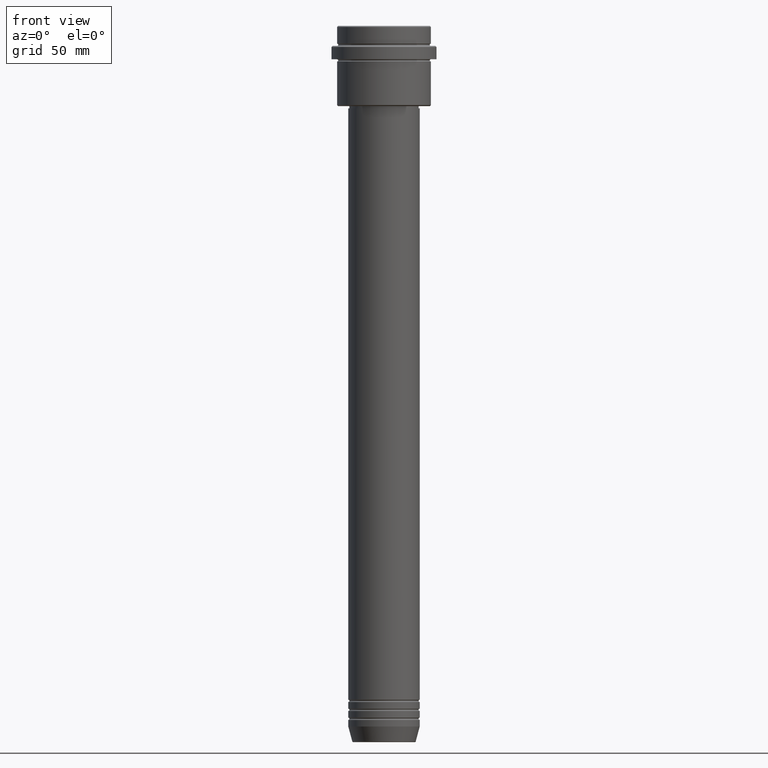
[diagram: clean part render]
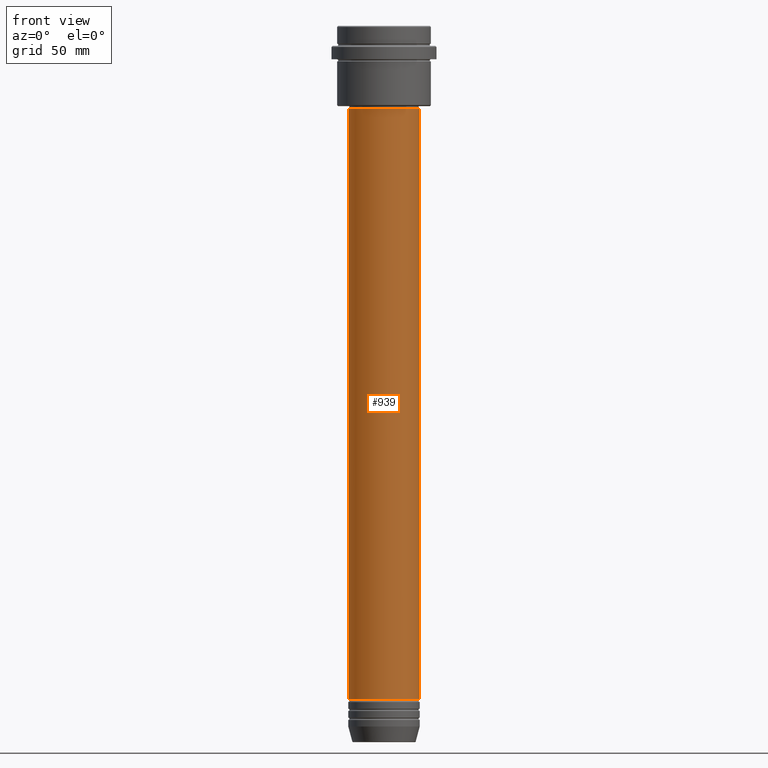
[diagram: same view with one face highlighted and labeled with its STEP entity id]
A machine part, front view. The second image highlights one B-rep face of the part: STEP entity #939.
In plain terms, the highlighted cylindrical surface (edge-blend (fillet) strip) has radius 16 mm, axis along (-0, -0, 1).
Its self-contained STEP definition (entity closure, byte-faithful):
#21 = ORIENTED_EDGE ( 'NONE', *, *, #1329, .F. ) ;
#23 = VERTEX_POINT ( 'NONE', #117 ) ;
#62 = VECTOR ( 'NONE', #1145, 1000.000000000000000 ) ;
#117 = CARTESIAN_POINT ( 'NONE',  ( 16.00000000000000355, 0.000000000000000000, -37.00000000000000711 ) ) ;
#194 = DIRECTION ( 'NONE',  ( 1.000000000000000000, 0.000000000000000000, 0.000000000000000000 ) ) ;
#256 = LINE ( 'NONE', #915, #62 ) ;
#265 = AXIS2_PLACEMENT_3D ( 'NONE', #583, #705, #1018 ) ;
#361 = ORIENTED_EDGE ( 'NONE', *, *, #1171, .T. ) ;
#387 = EDGE_CURVE ( 'NONE', #1181, #1353, #585, .T. ) ;
#404 = CIRCLE ( 'NONE', #672, 16.00000000000000355 ) ;
#413 = FACE_OUTER_BOUND ( 'NONE', #525, .T. ) ;
#414 = EDGE_CURVE ( 'NONE', #1181, #1217, #256, .T. ) ;
#459 = CARTESIAN_POINT ( 'NONE',  ( 16.00000000000000000, 0.000000000000000000, 0.000000000000000000 ) ) ;
#525 = EDGE_LOOP ( 'NONE', ( #535, #859, #361, #21 ) ) ;
#535 = ORIENTED_EDGE ( 'NONE', *, *, #414, .F. ) ;
#572 = CARTESIAN_POINT ( 'NONE',  ( -16.00000000000000000, 1.959434878635765131E-15, -301.9999999999998863 ) ) ;
#583 = CARTESIAN_POINT ( 'NONE',  ( 0.000000000000000000, 0.000000000000000000, -301.9999999999998863 ) ) ;
#585 = CIRCLE ( 'NONE', #265, 16.00000000000000000 ) ;
#594 = LINE ( 'NONE', #459, #952 ) ;
#608 = CARTESIAN_POINT ( 'NONE',  ( 0.000000000000000000, 0.000000000000000000, -37.00000000000000711 ) ) ;
#672 = AXIS2_PLACEMENT_3D ( 'NONE', #608, #1273, #1046 ) ;
#705 = DIRECTION ( 'NONE',  ( -0.000000000000000000, -0.000000000000000000, 1.000000000000000000 ) ) ;
#734 = CARTESIAN_POINT ( 'NONE',  ( 16.00000000000000000, 0.000000000000000000, -301.9999999999998863 ) ) ;
#859 = ORIENTED_EDGE ( 'NONE', *, *, #387, .T. ) ;
#877 = AXIS2_PLACEMENT_3D ( 'NONE', #1155, #1376, #194 ) ;
#915 = CARTESIAN_POINT ( 'NONE',  ( -16.00000000000000000, 1.959434878635765131E-15, 0.000000000000000000 ) ) ;
#939 = ADVANCED_FACE ( 'NONE', ( #413 ), #1173, .T. ) ;
#952 = VECTOR ( 'NONE', #1227, 1000.000000000000000 ) ;
#1018 = DIRECTION ( 'NONE',  ( 1.000000000000000000, 0.000000000000000000, 0.000000000000000000 ) ) ;
#1046 = DIRECTION ( 'NONE',  ( 1.000000000000000000, 0.000000000000000000, 0.000000000000000000 ) ) ;
#1145 = DIRECTION ( 'NONE',  ( -0.000000000000000000, -0.000000000000000000, 1.000000000000000000 ) ) ;
#1155 = CARTESIAN_POINT ( 'NONE',  ( 0.000000000000000000, 0.000000000000000000, 0.000000000000000000 ) ) ;
#1171 = EDGE_CURVE ( 'NONE', #1353, #23, #594, .T. ) ;
#1173 = CYLINDRICAL_SURFACE ( 'NONE', #877, 16.00000000000000000 ) ;
#1181 = VERTEX_POINT ( 'NONE', #572 ) ;
#1217 = VERTEX_POINT ( 'NONE', #1361 ) ;
#1227 = DIRECTION ( 'NONE',  ( -0.000000000000000000, -0.000000000000000000, 1.000000000000000000 ) ) ;
#1273 = DIRECTION ( 'NONE',  ( -0.000000000000000000, -0.000000000000000000, 1.000000000000000000 ) ) ;
#1329 = EDGE_CURVE ( 'NONE', #1217, #23, #404, .T. ) ;
#1353 = VERTEX_POINT ( 'NONE', #734 ) ;
#1361 = CARTESIAN_POINT ( 'NONE',  ( -16.00000000000000355, 1.959434878635765526E-15, -37.00000000000000711 ) ) ;
#1376 = DIRECTION ( 'NONE',  ( -0.000000000000000000, -0.000000000000000000, 1.000000000000000000 ) ) ;